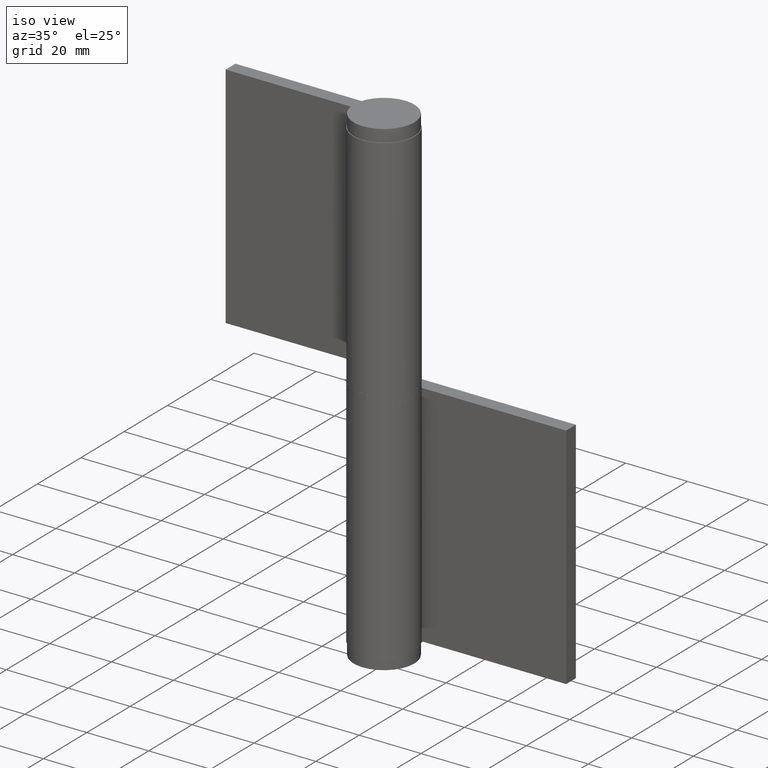
[diagram: clean part render]
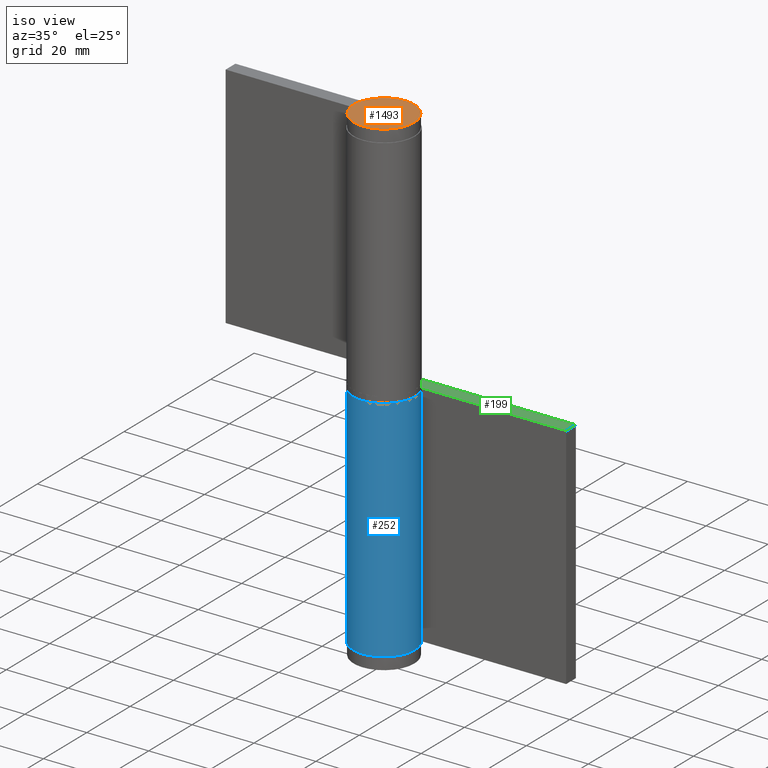
[diagram: same view with three faces highlighted in distinct colors, each labeled with its STEP entity id]
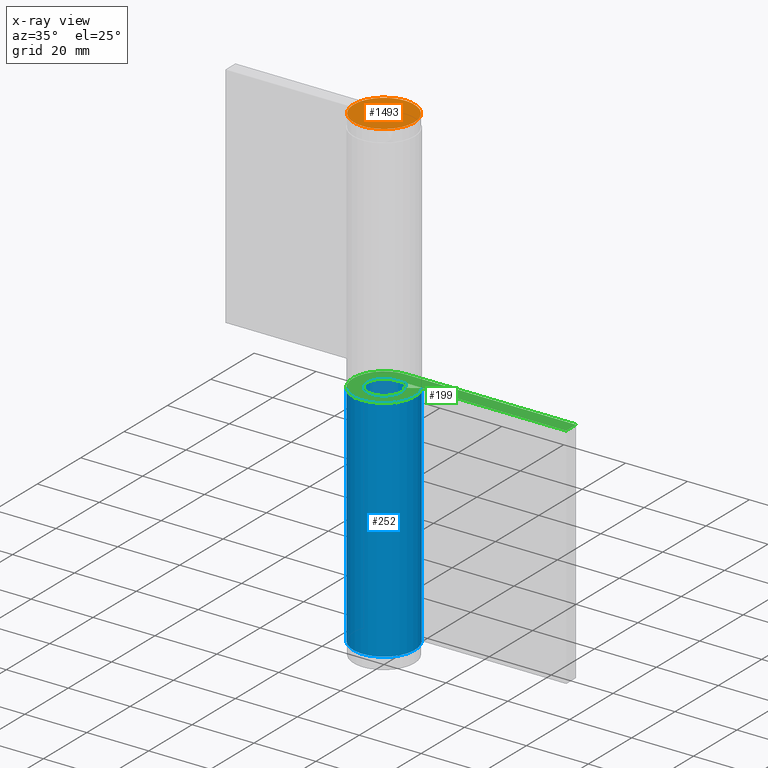
[diagram: x-ray of the same camera — body ghosted, the three highlighted faces saturated]
A machine part, iso view with three faces highlighted in distinct colors.
The next image is the same camera in x-ray (body ghosted, the three faces saturated) — at least one of them is partly hidden behind the body in this view.
Their STEP definitions:

[orange] entity #1493 — the highlighted face is a freeform B-spline surface patch.
#1452=CARTESIAN_POINT('',(-10.776774334124189,-10.776774334123610,153.999985000000010));
#1453=CARTESIAN_POINT('',(10.776774509325330,-10.776774334123610,153.999985000000010));
#1454=CARTESIAN_POINT('',(-10.776774334124189,10.776774509324749,153.999985000000010));
#1455=CARTESIAN_POINT('',(10.776774509325330,10.776774509324749,153.999985000000010));
#1456=B_SPLINE_SURFACE_WITH_KNOTS('',1,1,((#1452,#1454),(#1453,#1455)),.UNSPECIFIED.,.F.,.F.,.U.,(2,2),(2,2),(0.0,21.553548843449519),(0.0,21.553548843448361),.UNSPECIFIED.);
#1457=CARTESIAN_POINT('',(9.797958000000001,0.0,153.999985000000010));
#1458=VERTEX_POINT('',#1457);
#1459=CARTESIAN_POINT('',(-9.797958000000001,0.0,153.999985000000010));
#1460=VERTEX_POINT('',#1459);
#1461=CARTESIAN_POINT('',(9.797958000000001,0.0,153.999985000000010));
#1462=CARTESIAN_POINT('',(9.797958000000001,-9.797958000000001,153.999984999999980));
#1463=CARTESIAN_POINT('',(0.0,-9.797958000000001,153.999985000000010));
#1464=CARTESIAN_POINT('',(-9.797958000000001,-9.797958000000001,153.999984999999980));
#1465=CARTESIAN_POINT('',(-9.797958000000001,0.0,153.999985000000010));
#1473=(BOUNDED_CURVE()B_SPLINE_CURVE(2,(#1461,#1462,#1463,#1464,#1465),.UNSPECIFIED.,.F.,.U.)B_SPLINE_CURVE_WITH_KNOTS((3,2,3),(0.500000000000000,0.750000000000000,1.0),.UNSPECIFIED.)CURVE()GEOMETRIC_REPRESENTATION_ITEM()RATIONAL_B_SPLINE_CURVE((1.0,0.707106781186548,1.0,0.707106781186548,1.0))REPRESENTATION_ITEM(''));
#1474=EDGE_CURVE('',#1458,#1460,#1473,.T.);
#1475=ORIENTED_EDGE('',*,*,#1474,.F.);
#1476=CARTESIAN_POINT('',(-9.797958000000001,0.0,153.999985000000010));
#1477=CARTESIAN_POINT('',(-9.797958000000001,9.797958000000001,153.999984999999980));
#1478=CARTESIAN_POINT('',(0.0,9.797958000000001,153.999985000000010));
#1479=CARTESIAN_POINT('',(9.797958000000001,9.797958000000001,153.999984999999980));
#1480=CARTESIAN_POINT('',(9.797958000000001,0.0,153.999985000000010));
#1488=(BOUNDED_CURVE()B_SPLINE_CURVE(2,(#1476,#1477,#1478,#1479,#1480),.UNSPECIFIED.,.F.,.U.)B_SPLINE_CURVE_WITH_KNOTS((3,2,3),(0.0,0.250000000000000,0.500000000000000),.UNSPECIFIED.)CURVE()GEOMETRIC_REPRESENTATION_ITEM()RATIONAL_B_SPLINE_CURVE((1.0,0.707106781186548,1.0,0.707106781186548,1.0))REPRESENTATION_ITEM(''));
#1489=EDGE_CURVE('',#1460,#1458,#1488,.T.);
#1490=ORIENTED_EDGE('',*,*,#1489,.F.);
#1491=EDGE_LOOP('',(#1475,#1490));
#1492=FACE_OUTER_BOUND('',#1491,.T.);
#1493=ADVANCED_FACE('',(#1492),#1456,.T.);

[blue] entity #252 — the highlighted face is a freeform B-spline surface patch.
#72=CARTESIAN_POINT('',(8.384360440725340,5.450000000000000,0.0));
#73=VERTEX_POINT('',#72);
#79=CARTESIAN_POINT('',(0.0,10.0,0.0));
#80=VERTEX_POINT('',#79);
#81=CARTESIAN_POINT('',(8.384360440725336,5.450000000000003,0.0));
#82=CARTESIAN_POINT('',(12.623722496663076,-1.071897158847048,0.0));
#83=CARTESIAN_POINT('',(7.345416193928744,-6.785636369418080,0.0));
#84=CARTESIAN_POINT('',(2.067109891194402,-12.499375579989119,0.0));
#85=CARTESIAN_POINT('',(-4.769696007084729,-8.789197915623474,0.0));
#86=CARTESIAN_POINT('',(-11.606501905363862,-5.079020251257827,0.0));
#87=CARTESIAN_POINT('',(-9.692573939780772,2.460489874371092,0.0));
#88=CARTESIAN_POINT('',(-7.778645974197686,10.0,0.0));
#89=CARTESIAN_POINT('',(0.0,10.0,0.0));
#97=(BOUNDED_CURVE()B_SPLINE_CURVE(2,(#81,#82,#83,#84,#85,#86,#87,#88,#89),.UNSPECIFIED.,.F.,.U.)B_SPLINE_CURVE_WITH_KNOTS((3,2,2,2,3),(0.0,0.250000000000000,0.500000000000000,0.750000000000000,1.0),.UNSPECIFIED.)CURVE()GEOMETRIC_REPRESENTATION_ITEM()RATIONAL_B_SPLINE_CURVE((1.0,0.789319006307687,1.0,0.789319006307687,1.0,0.789319006307687,1.0,0.789319006307687,1.0))REPRESENTATION_ITEM(''));
#98=EDGE_CURVE('',#73,#80,#97,.T.);
#164=CARTESIAN_POINT('',(0.0,10.0,74.0));
#165=VERTEX_POINT('',#164);
#171=CARTESIAN_POINT('',(8.384360440725340,5.450000000000000,74.0));
#172=VERTEX_POINT('',#171);
#173=CARTESIAN_POINT('',(8.384360440725336,5.450000000000003,74.0));
#174=CARTESIAN_POINT('',(12.623722496663076,-1.071897158847048,74.0));
#175=CARTESIAN_POINT('',(7.345416193928744,-6.785636369418080,74.0));
#176=CARTESIAN_POINT('',(2.067109891194402,-12.499375579989119,74.0));
#177=CARTESIAN_POINT('',(-4.769696007084729,-8.789197915623474,74.0));
#178=CARTESIAN_POINT('',(-11.606501905363862,-5.079020251257827,74.0));
#179=CARTESIAN_POINT('',(-9.692573939780772,2.460489874371092,74.0));
#180=CARTESIAN_POINT('',(-7.778645974197686,10.0,74.0));
#181=CARTESIAN_POINT('',(0.0,10.0,74.0));
#189=(BOUNDED_CURVE()B_SPLINE_CURVE(2,(#173,#174,#175,#176,#177,#178,#179,#180,#181),.UNSPECIFIED.,.F.,.U.)B_SPLINE_CURVE_WITH_KNOTS((3,2,2,2,3),(0.0,0.250000000000000,0.500000000000000,0.750000000000000,1.0),.UNSPECIFIED.)CURVE()GEOMETRIC_REPRESENTATION_ITEM()RATIONAL_B_SPLINE_CURVE((1.0,0.789319006307687,1.0,0.789319006307687,1.0,0.789319006307687,1.0,0.789319006307687,1.0))REPRESENTATION_ITEM(''));
#190=EDGE_CURVE('',#172,#165,#189,.T.);
#212=CARTESIAN_POINT('',(8.384360440725340,5.450000000000000,74.0));
#213=CARTESIAN_POINT('',(8.384360440725340,5.450000000000000,0.0));
#214=QUASI_UNIFORM_CURVE('',1,(#212,#213),.UNSPECIFIED.,.F.,.U.);
#215=EDGE_CURVE('',#172,#73,#214,.T.);
#220=CARTESIAN_POINT('',(0.087265354983731,9.999619230641709,75.850000000000023));
#221=CARTESIAN_POINT('',(0.087265354983731,9.999619230641709,-1.896250000000009));
#222=CARTESIAN_POINT('',(-12.334946620419215,10.108026232219819,75.850000000000037));
#223=CARTESIAN_POINT('',(-12.334946620419215,10.108026232219819,-1.896250000000009));
#224=CARTESIAN_POINT('',(-9.787482521324137,-2.050654991648877,75.850000000000023));
#225=CARTESIAN_POINT('',(-9.787482521324137,-2.050654991648877,-1.896250000000009));
#226=CARTESIAN_POINT('',(-7.240018422229057,-14.209336215517574,75.850000000000037));
#227=CARTESIAN_POINT('',(-7.240018422229057,-14.209336215517574,-1.896250000000009));
#228=CARTESIAN_POINT('',(4.093923145260922,-9.123584453530139,75.850000000000023));
#229=CARTESIAN_POINT('',(4.093923145260922,-9.123584453530139,-1.896250000000009));
#230=CARTESIAN_POINT('',(15.427864712750901,-4.037832691542703,75.850000000000037));
#231=CARTESIAN_POINT('',(15.427864712750901,-4.037832691542703,-1.896250000000009));
#232=CARTESIAN_POINT('',(8.038568606172175,5.948227867513404,75.850000000000023));
#233=CARTESIAN_POINT('',(8.038568606172175,5.948227867513404,-1.896250000000009));
#241=(BOUNDED_SURFACE()B_SPLINE_SURFACE(1,2,((#220,#222,#224,#226,#228,#230,#232),(#221,#223,#225,#227,#229,#231,#233)),.UNSPECIFIED.,.F.,.F.,.U.)B_SPLINE_SURFACE_WITH_KNOTS((2,2),(3,2,2,3),(0.0,77.746250000000032),(0.0,19.150484318994121,38.300968637988248,57.451452956982372),.UNSPECIFIED.)GEOMETRIC_REPRESENTATION_ITEM()RATIONAL_B_SPLINE_SURFACE(((1.0,0.627057105746662,1.0,0.627057105746662,1.0,0.627057105746662,1.0),(1.0,0.627057105746662,1.0,0.627057105746662,1.0,0.627057105746662,1.0)))REPRESENTATION_ITEM('')SURFACE());
#242=ORIENTED_EDGE('',*,*,#98,.F.);
#243=ORIENTED_EDGE('',*,*,#215,.F.);
#244=ORIENTED_EDGE('',*,*,#190,.T.);
#245=CARTESIAN_POINT('',(0.0,10.0,74.0));
#246=CARTESIAN_POINT('',(0.0,10.0,0.0));
#247=QUASI_UNIFORM_CURVE('',1,(#245,#246),.UNSPECIFIED.,.F.,.U.);
#248=EDGE_CURVE('',#165,#80,#247,.T.);
#249=ORIENTED_EDGE('',*,*,#248,.T.);
#250=EDGE_LOOP('',(#242,#243,#244,#249));
#251=FACE_OUTER_BOUND('',#250,.T.);
#252=ADVANCED_FACE('',(#251),#241,.T.);

[green] entity #199 — the highlighted face is a freeform B-spline surface patch.
#122=CARTESIAN_POINT('',(-13.245433616303620,-10.993734147071921,74.0));
#123=CARTESIAN_POINT('',(58.246688998180268,-10.993734147071921,74.0));
#124=CARTESIAN_POINT('',(-13.245433616303620,10.998749983321019,74.0));
#125=CARTESIAN_POINT('',(58.246688998180268,10.998749983321019,74.0));
#126=B_SPLINE_SURFACE_WITH_KNOTS('',1,1,((#122,#124),(#123,#125)),.UNSPECIFIED.,.F.,.F.,.U.,(2,2),(2,2),(0.0,71.492122614483890),(0.0,21.992484130392938),.UNSPECIFIED.);
#127=CARTESIAN_POINT('',(4.611398242398940,2.997500000000000,74.0));
#128=VERTEX_POINT('',#127);
#129=CARTESIAN_POINT('',(0.0,5.500000000000000,74.0));
#130=VERTEX_POINT('',#129);
#131=CARTESIAN_POINT('',(4.611398242398938,2.997499999999997,74.0));
#132=CARTESIAN_POINT('',(6.943047373164694,-0.589543437365882,74.0));
#133=CARTESIAN_POINT('',(4.039978906660805,-3.732100003179947,74.0));
#134=CARTESIAN_POINT('',(1.136910440156917,-6.874656568994013,74.0));
#135=CARTESIAN_POINT('',(-2.623332803896601,-4.834058853592910,74.0));
#136=CARTESIAN_POINT('',(-6.383576047950122,-2.793461138191805,74.0));
#137=CARTESIAN_POINT('',(-5.330915666879424,1.353269430904100,74.0));
#138=CARTESIAN_POINT('',(-4.278255285808728,5.500000000000001,74.0));
#139=CARTESIAN_POINT('',(0.0,5.500000000000000,74.0));
#147=(BOUNDED_CURVE()B_SPLINE_CURVE(2,(#131,#132,#133,#134,#135,#136,#137,#138,#139),.UNSPECIFIED.,.F.,.U.)B_SPLINE_CURVE_WITH_KNOTS((3,2,2,2,3),(0.0,0.250000000000000,0.500000000000000,0.750000000000000,1.0),.UNSPECIFIED.)CURVE()GEOMETRIC_REPRESENTATION_ITEM()RATIONAL_B_SPLINE_CURVE((1.0,0.789319006307687,1.0,0.789319006307687,1.0,0.789319006307687,1.0,0.789319006307687,1.0))REPRESENTATION_ITEM(''));
#148=EDGE_CURVE('',#128,#130,#147,.T.);
#149=ORIENTED_EDGE('',*,*,#148,.T.);
#150=CARTESIAN_POINT('',(55.0,5.500000000000000,74.0));
#151=VERTEX_POINT('',#150);
#152=CARTESIAN_POINT('',(0.0,5.500000000000000,74.0));
#153=CARTESIAN_POINT('',(55.0,5.500000000000000,74.0));
#154=QUASI_UNIFORM_CURVE('',1,(#152,#153),.UNSPECIFIED.,.F.,.U.);
#155=EDGE_CURVE('',#130,#151,#154,.T.);
#156=ORIENTED_EDGE('',*,*,#155,.T.);
#157=CARTESIAN_POINT('',(55.0,10.0,74.0));
#158=VERTEX_POINT('',#157);
#159=CARTESIAN_POINT('',(55.0,5.500000000000000,74.0));
#160=CARTESIAN_POINT('',(55.0,10.0,74.0));
#161=QUASI_UNIFORM_CURVE('',1,(#159,#160),.UNSPECIFIED.,.F.,.U.);
#162=EDGE_CURVE('',#151,#158,#161,.T.);
#163=ORIENTED_EDGE('',*,*,#162,.T.);
#164=CARTESIAN_POINT('',(0.0,10.0,74.0));
#165=VERTEX_POINT('',#164);
#166=CARTESIAN_POINT('',(55.0,10.0,74.0));
#167=CARTESIAN_POINT('',(0.0,10.0,74.0));
#168=QUASI_UNIFORM_CURVE('',1,(#166,#167),.UNSPECIFIED.,.F.,.U.);
#169=EDGE_CURVE('',#158,#165,#168,.T.);
#170=ORIENTED_EDGE('',*,*,#169,.T.);
#171=CARTESIAN_POINT('',(8.384360440725340,5.450000000000000,74.0));
#172=VERTEX_POINT('',#171);
#173=CARTESIAN_POINT('',(8.384360440725336,5.450000000000003,74.0));
#174=CARTESIAN_POINT('',(12.623722496663076,-1.071897158847048,74.0));
#175=CARTESIAN_POINT('',(7.345416193928744,-6.785636369418080,74.0));
#176=CARTESIAN_POINT('',(2.067109891194402,-12.499375579989119,74.0));
#177=CARTESIAN_POINT('',(-4.769696007084729,-8.789197915623474,74.0));
#178=CARTESIAN_POINT('',(-11.606501905363862,-5.079020251257827,74.0));
#179=CARTESIAN_POINT('',(-9.692573939780772,2.460489874371092,74.0));
#180=CARTESIAN_POINT('',(-7.778645974197686,10.0,74.0));
#181=CARTESIAN_POINT('',(0.0,10.0,74.0));
#189=(BOUNDED_CURVE()B_SPLINE_CURVE(2,(#173,#174,#175,#176,#177,#178,#179,#180,#181),.UNSPECIFIED.,.F.,.U.)B_SPLINE_CURVE_WITH_KNOTS((3,2,2,2,3),(0.0,0.250000000000000,0.500000000000000,0.750000000000000,1.0),.UNSPECIFIED.)CURVE()GEOMETRIC_REPRESENTATION_ITEM()RATIONAL_B_SPLINE_CURVE((1.0,0.789319006307687,1.0,0.789319006307687,1.0,0.789319006307687,1.0,0.789319006307687,1.0))REPRESENTATION_ITEM(''));
#190=EDGE_CURVE('',#172,#165,#189,.T.);
#191=ORIENTED_EDGE('',*,*,#190,.F.);
#192=CARTESIAN_POINT('',(8.384360440725340,5.450000000000000,74.0));
#193=CARTESIAN_POINT('',(4.611398242398940,2.997500000000000,74.0));
#194=QUASI_UNIFORM_CURVE('',1,(#192,#193),.UNSPECIFIED.,.F.,.U.);
#195=EDGE_CURVE('',#172,#128,#194,.T.);
#196=ORIENTED_EDGE('',*,*,#195,.T.);
#197=EDGE_LOOP('',(#149,#156,#163,#170,#191,#196));
#198=FACE_OUTER_BOUND('',#197,.T.);
#199=ADVANCED_FACE('',(#198),#126,.T.);